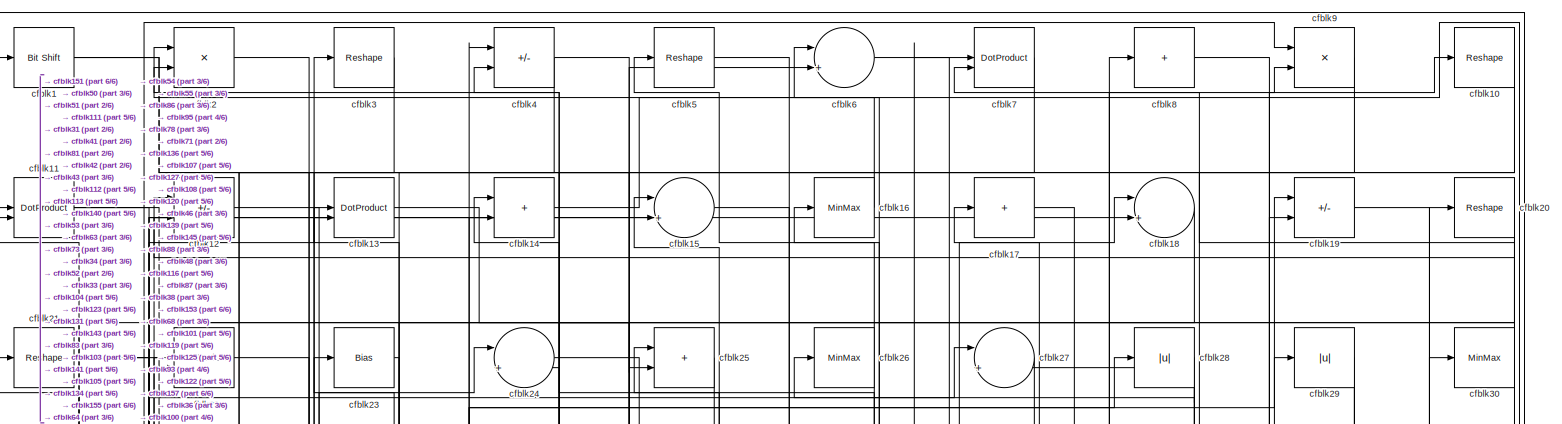
[diagram: root canvas - part 1/6, full width, top band]
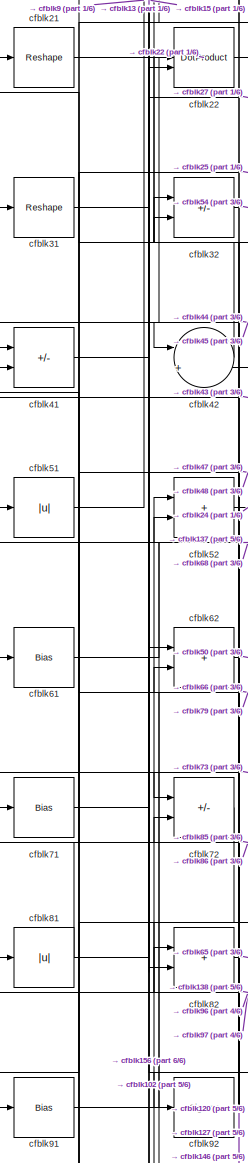
[diagram: root canvas - part 2/6, middle left region]
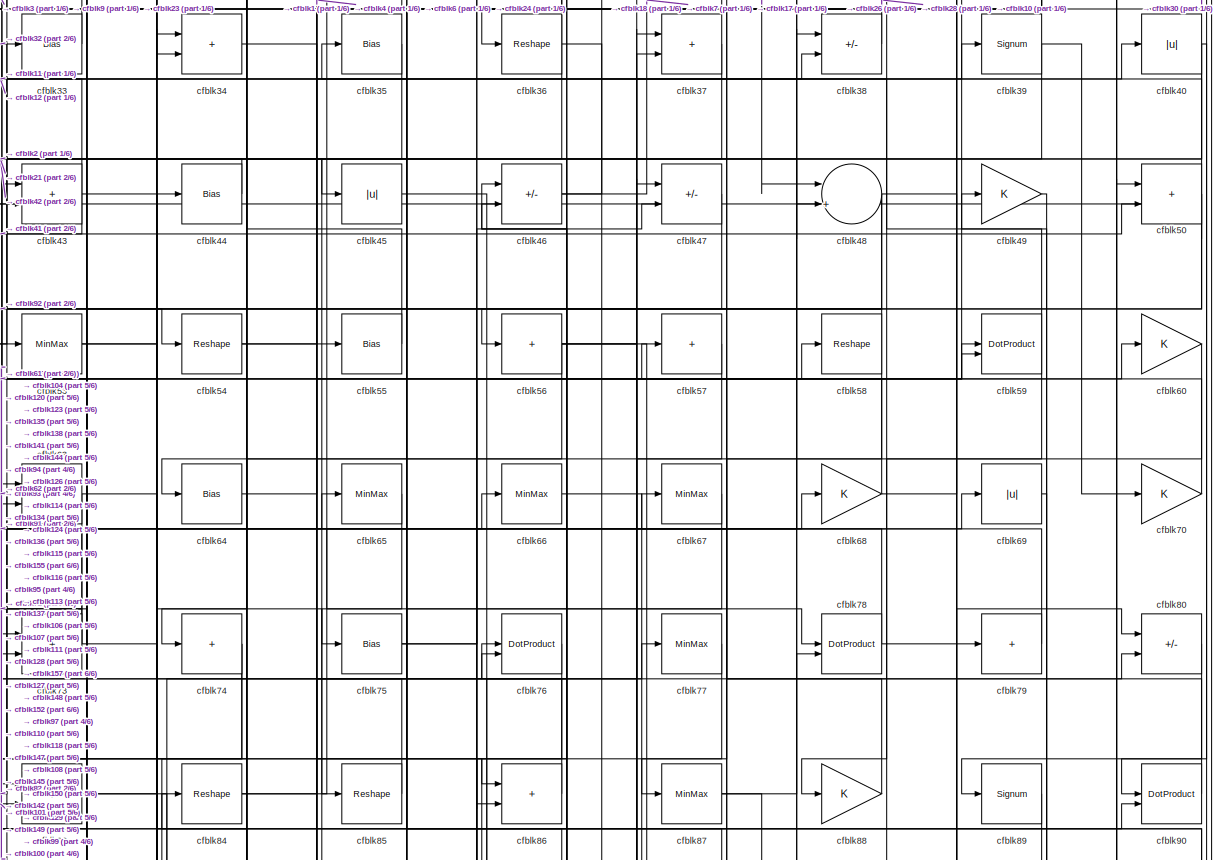
[diagram: root canvas - part 3/6, full width, middle band]
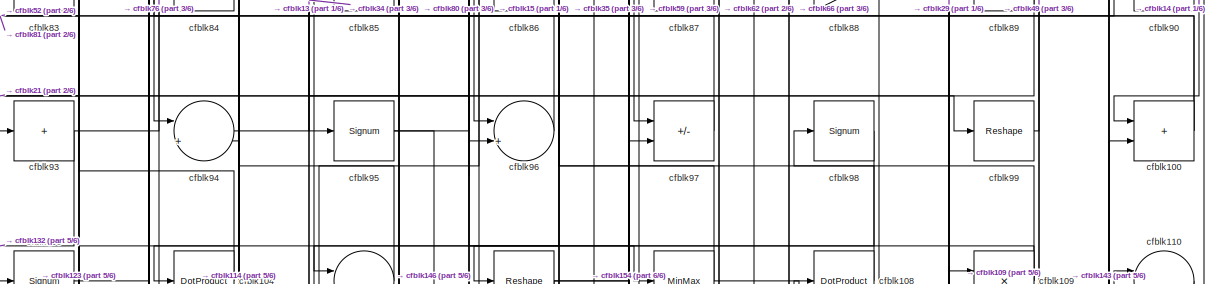
[diagram: root canvas - part 4/6, full width, middle band]
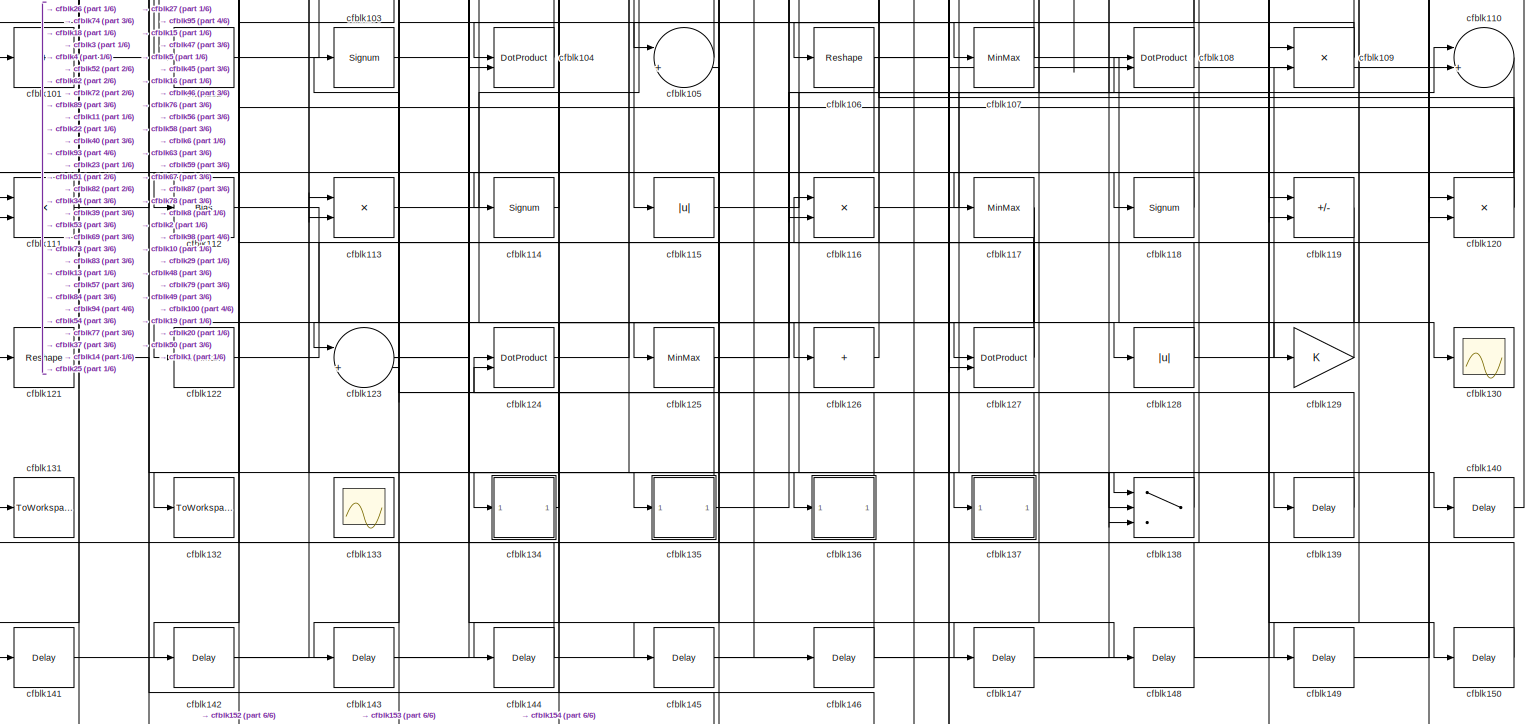
[diagram: root canvas - part 5/6, full width, bottom band]
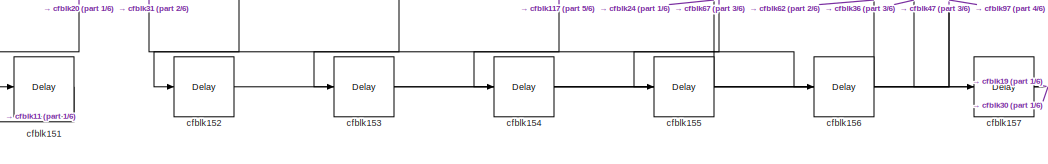
[diagram: root canvas - part 6/6, bottom center region]
MODEL slx_2cf994983c35
KIND model
CONFIG AbsTol = auto
CONFIG EnableMultiTasking = off
CONFIG FixedStep = auto
CONFIG MaxStep = auto
CONFIG MinStep = auto
CONFIG RelTol = 1e-3
CONFIG SampleTimeConstraint = Unconstrained
CONFIG SolverName = VariableStepAuto
CONFIG StartTime = 0.0
CONFIG StopTime = 10.0
BLOCK [Reference] cfblk1  REF=hdlsllib/Logic and Bit
Operations/Bit Shift
  SourceBlock = hdlsllib/Logic and Bit\nOperations/Bit Shift
  SourceType = Bit Shift
BLOCK [Reshape] cfblk10
BLOCK [Sum] cfblk100
  IconShape = rectangular
BLOCK [Sum] cfblk101
  IconShape = rectangular
  Inputs = +
BLOCK [Sum] cfblk102
  IconShape = rectangular
  Inputs = +
BLOCK [Signum] cfblk103
BLOCK [DotProduct] cfblk104
  OutDataTypeStr = Inherit: Inherit via internal rule
BLOCK [Sum] cfblk105
  Inputs = |++
BLOCK [Reshape] cfblk106
BLOCK [MinMax] cfblk107
BLOCK [DotProduct] cfblk108
  OutDataTypeStr = Inherit: Inherit via internal rule
BLOCK [Product] cfblk109
  Inputs = */
  RndMeth = Zero
  SaturateOnIntegerOverflow = on
BLOCK [DotProduct] cfblk11
  OutDataTypeStr = Inherit: Inherit via internal rule
BLOCK [Sum] cfblk110
  Inputs = |++
BLOCK [Product] cfblk111
  Inputs = */
  RndMeth = Zero
  SaturateOnIntegerOverflow = on
BLOCK [Bias] cfblk112
  Bias = 0.0
  SaturateOnIntegerOverflow = off
BLOCK [Product] cfblk113
  Inputs = */
  RndMeth = Zero
  SaturateOnIntegerOverflow = on
BLOCK [Signum] cfblk114
BLOCK [Abs] cfblk115
  SaturateOnIntegerOverflow = off
BLOCK [Product] cfblk116
  Inputs = */
  RndMeth = Zero
  SaturateOnIntegerOverflow = on
BLOCK [MinMax] cfblk117
BLOCK [Signum] cfblk118
BLOCK [Sum] cfblk119
  IconShape = rectangular
  Inputs = +-
BLOCK [Sum] cfblk12
  IconShape = rectangular
  Inputs = +-
BLOCK [Product] cfblk120
  Inputs = */
  RndMeth = Zero
  SaturateOnIntegerOverflow = on
BLOCK [Reshape] cfblk121
BLOCK [MinMax] cfblk122
BLOCK [Sum] cfblk123
  Inputs = |++
BLOCK [DotProduct] cfblk124
  OutDataTypeStr = Inherit: Inherit via internal rule
BLOCK [MinMax] cfblk125
BLOCK [Sum] cfblk126
  IconShape = rectangular
  Inputs = +
BLOCK [DotProduct] cfblk127
  OutDataTypeStr = Inherit: Inherit via internal rule
BLOCK [Abs] cfblk128
  SaturateOnIntegerOverflow = off
BLOCK [Gain] cfblk129
BLOCK [DotProduct] cfblk13
  OutDataTypeStr = Inherit: Inherit via internal rule
BLOCK [Scope] cfblk130
  Floating = off
  NumInputPorts = 1
  ScopeSpecificationString = Simulink.scopes.TimeScopeBlockCfg('CurrentConfiguration', extmgr.ConfigurationSet(extmgr.Configuration('Core','General UI',true),extmgr.Configuration('Core','Source UI',true),extmgr.Configuration('Sources','WiredSimulink',true,'DataLoggingVariableName','ScopeData2','DataLoggingSaveFormat','Array','DataLoggingLimitDataPoints',true,'DataLoggingDecimation','1'),extmgr.Configuration('Visuals','Time Do...<+868ch>
BLOCK [ToWorkspace] cfblk131
  MaxDataPoints = inf
  SampleTime = -1
  SaveFormat = Timeseries
  VariableName = simout
BLOCK [ToWorkspace] cfblk132
  MaxDataPoints = inf
  SampleTime = -1
  SaveFormat = Timeseries
  VariableName = simout
BLOCK [Scope] cfblk133
  Floating = on
  NumInputPorts = 1
  ScopeSpecificationString = Simulink.scopes.TimeScopeBlockCfg('CurrentConfiguration', extmgr.ConfigurationSet(extmgr.Configuration('Core','General UI',true,'FigureColor',[0.156862745098039 0.156862745098039 0.156862745098039]),extmgr.Configuration('Core','Source UI',true),extmgr.Configuration('Sources','WiredSimulink',true,'DataLoggingVariableName','ScopeData1','DataLoggingSaveFormat','StructureWithTime','DataLoggingLimitDat...<+2713ch>
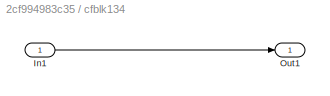
BLOCK [SubSystem] cfblk134
  LibrarySourceBlock = hdlsllib/Ports &\nSubsystems/Subsystem
BLOCK [Inport] cfblk134/In1
BLOCK [Outport] cfblk134/Out1
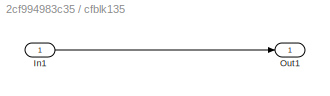
BLOCK [SubSystem] cfblk135
  LibrarySourceBlock = hdlsllib/Ports &\nSubsystems/Subsystem
BLOCK [Inport] cfblk135/In1
BLOCK [Outport] cfblk135/Out1
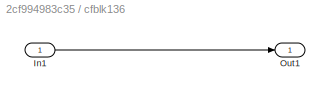
BLOCK [SubSystem] cfblk136
  LibrarySourceBlock = hdlsllib/Ports &\nSubsystems/Subsystem
BLOCK [Inport] cfblk136/In1
BLOCK [Outport] cfblk136/Out1
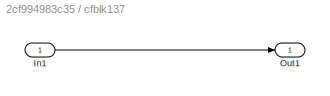
BLOCK [SubSystem] cfblk137
  LibrarySourceBlock = hdlsllib/Ports &\nSubsystems/Subsystem
BLOCK [Inport] cfblk137/In1
BLOCK [Outport] cfblk137/Out1
BLOCK [Switch] cfblk138
  InputSameDT = off
  SaturateOnIntegerOverflow = off
BLOCK [Delay] cfblk139
  InputPortMap = u0
  SampleTime = 1
BLOCK [Sum] cfblk14
  IconShape = rectangular
BLOCK [Delay] cfblk140
  InputPortMap = u0
  SampleTime = 1
BLOCK [Delay] cfblk141
  InputPortMap = u0
  SampleTime = 1
BLOCK [Delay] cfblk142
  InputPortMap = u0
  SampleTime = 1
BLOCK [Delay] cfblk143
  InputPortMap = u0
  SampleTime = 1
BLOCK [Delay] cfblk144
  InputPortMap = u0
  SampleTime = 1
BLOCK [Delay] cfblk145
  InputPortMap = u0
  SampleTime = 1
BLOCK [Delay] cfblk146
  InputPortMap = u0
  SampleTime = 1
BLOCK [Delay] cfblk147
  InputPortMap = u0
  SampleTime = 1
BLOCK [Delay] cfblk148
  InputPortMap = u0
  SampleTime = 1
BLOCK [Delay] cfblk149
  InputPortMap = u0
  SampleTime = 1
BLOCK [Sum] cfblk15
  Inputs = |++
BLOCK [Delay] cfblk150
  InputPortMap = u0
  SampleTime = 1
BLOCK [Delay] cfblk151
  InputPortMap = u0
  SampleTime = 1
BLOCK [Delay] cfblk152
  InputPortMap = u0
  SampleTime = 1
BLOCK [Delay] cfblk153
  InputPortMap = u0
  SampleTime = 1
BLOCK [Delay] cfblk154
  InputPortMap = u0
  SampleTime = 1
BLOCK [Delay] cfblk155
  InputPortMap = u0
  SampleTime = 1
BLOCK [Delay] cfblk156
  InputPortMap = u0
  SampleTime = 1
BLOCK [Delay] cfblk157
  InputPortMap = u0
  SampleTime = 1
BLOCK [MinMax] cfblk16
BLOCK [Sum] cfblk17
  IconShape = rectangular
  Inputs = +
BLOCK [Sum] cfblk18
  Inputs = |++
BLOCK [Sum] cfblk19
  IconShape = rectangular
  Inputs = +-
BLOCK [Product] cfblk2
  Inputs = */
  RndMeth = Zero
  SaturateOnIntegerOverflow = on
BLOCK [Reshape] cfblk20
BLOCK [Reshape] cfblk21
BLOCK [DotProduct] cfblk22
  OutDataTypeStr = Inherit: Inherit via internal rule
BLOCK [Bias] cfblk23
  Bias = 0.0
  SaturateOnIntegerOverflow = off
BLOCK [Sum] cfblk24
  Inputs = |++
BLOCK [Sum] cfblk25
  IconShape = rectangular
BLOCK [MinMax] cfblk26
BLOCK [Sum] cfblk27
  Inputs = |++
BLOCK [Abs] cfblk28
  SaturateOnIntegerOverflow = off
BLOCK [Abs] cfblk29
  SaturateOnIntegerOverflow = off
BLOCK [Reshape] cfblk3
BLOCK [MinMax] cfblk30
BLOCK [Reshape] cfblk31
BLOCK [Sum] cfblk32
  IconShape = rectangular
  Inputs = +-
BLOCK [Bias] cfblk33
  Bias = 0.0
  SaturateOnIntegerOverflow = off
BLOCK [Sum] cfblk34
  IconShape = rectangular
BLOCK [Bias] cfblk35
  Bias = 0.0
  SaturateOnIntegerOverflow = off
BLOCK [Reshape] cfblk36
BLOCK [Sum] cfblk37
  IconShape = rectangular
BLOCK [Sum] cfblk38
  IconShape = rectangular
  Inputs = +-
BLOCK [Signum] cfblk39
BLOCK [Sum] cfblk4
  IconShape = rectangular
  Inputs = +-
BLOCK [Abs] cfblk40
  SaturateOnIntegerOverflow = off
BLOCK [Sum] cfblk41
  IconShape = rectangular
  Inputs = +-
BLOCK [Sum] cfblk42
  Inputs = |++
BLOCK [Sum] cfblk43
  IconShape = rectangular
BLOCK [Bias] cfblk44
  Bias = 0.0
  SaturateOnIntegerOverflow = off
BLOCK [Abs] cfblk45
  SaturateOnIntegerOverflow = off
BLOCK [Sum] cfblk46
  IconShape = rectangular
  Inputs = +-
BLOCK [Sum] cfblk47
  IconShape = rectangular
  Inputs = +-
BLOCK [Sum] cfblk48
  Inputs = |++
BLOCK [Gain] cfblk49
BLOCK [Reshape] cfblk5
BLOCK [Sum] cfblk50
  IconShape = rectangular
BLOCK [Abs] cfblk51
  SaturateOnIntegerOverflow = off
BLOCK [Sum] cfblk52
  IconShape = rectangular
BLOCK [MinMax] cfblk53
BLOCK [Reshape] cfblk54
BLOCK [Bias] cfblk55
  Bias = 0.0
  SaturateOnIntegerOverflow = off
BLOCK [Sum] cfblk56
  IconShape = rectangular
  Inputs = +
BLOCK [Sum] cfblk57
  IconShape = rectangular
  Inputs = +
BLOCK [Reshape] cfblk58
BLOCK [DotProduct] cfblk59
  OutDataTypeStr = Inherit: Inherit via internal rule
BLOCK [Sum] cfblk6
  Inputs = |++
BLOCK [Gain] cfblk60
BLOCK [Bias] cfblk61
  Bias = 0.0
  SaturateOnIntegerOverflow = off
BLOCK [Sum] cfblk62
  IconShape = rectangular
BLOCK [Sum] cfblk63
  IconShape = rectangular
BLOCK [Bias] cfblk64
  Bias = 0.0
  SaturateOnIntegerOverflow = off
BLOCK [MinMax] cfblk65
BLOCK [MinMax] cfblk66
BLOCK [MinMax] cfblk67
BLOCK [Gain] cfblk68
BLOCK [Abs] cfblk69
  SaturateOnIntegerOverflow = off
BLOCK [DotProduct] cfblk7
  OutDataTypeStr = Inherit: Inherit via internal rule
BLOCK [Gain] cfblk70
BLOCK [Bias] cfblk71
  Bias = 0.0
  SaturateOnIntegerOverflow = off
BLOCK [Sum] cfblk72
  IconShape = rectangular
  Inputs = +-
BLOCK [Sum] cfblk73
  IconShape = rectangular
BLOCK [Sum] cfblk74
  IconShape = rectangular
  Inputs = +
BLOCK [Bias] cfblk75
  Bias = 0.0
  SaturateOnIntegerOverflow = off
BLOCK [DotProduct] cfblk76
  OutDataTypeStr = Inherit: Inherit via internal rule
BLOCK [MinMax] cfblk77
BLOCK [DotProduct] cfblk78
  OutDataTypeStr = Inherit: Inherit via internal rule
BLOCK [Sum] cfblk79
  IconShape = rectangular
  Inputs = +
BLOCK [Sum] cfblk8
  IconShape = rectangular
  Inputs = +
BLOCK [Sum] cfblk80
  IconShape = rectangular
  Inputs = +-
BLOCK [Abs] cfblk81
  SaturateOnIntegerOverflow = off
BLOCK [Sum] cfblk82
  IconShape = rectangular
BLOCK [Sum] cfblk83
  IconShape = rectangular
  Inputs = +-
BLOCK [Reshape] cfblk84
BLOCK [Reshape] cfblk85
BLOCK [Sum] cfblk86
  IconShape = rectangular
BLOCK [MinMax] cfblk87
BLOCK [Gain] cfblk88
BLOCK [Signum] cfblk89
BLOCK [Product] cfblk9
  Inputs = */
  RndMeth = Zero
  SaturateOnIntegerOverflow = on
BLOCK [DotProduct] cfblk90
  OutDataTypeStr = Inherit: Inherit via internal rule
BLOCK [Bias] cfblk91
  Bias = 0.0
  SaturateOnIntegerOverflow = off
BLOCK [Signum] cfblk92
BLOCK [Sum] cfblk93
  IconShape = rectangular
  Inputs = +
BLOCK [Sum] cfblk94
  Inputs = |++
BLOCK [Signum] cfblk95
BLOCK [Sum] cfblk96
  Inputs = |++
BLOCK [Sum] cfblk97
  IconShape = rectangular
  Inputs = +-
BLOCK [Signum] cfblk98
BLOCK [Reshape] cfblk99
NET cfblk100:1 -> cfblk15:1, cfblk35:1
LINE cfblk101:1 -> cfblk19:1
LINE cfblk102:1 -> cfblk40:1
LINE cfblk103:1 -> cfblk29:1
LINE cfblk104:1 -> cfblk13:1
LINE cfblk105:1 -> cfblk14:1
NET cfblk106:1 -> cfblk118:1, cfblk121:1, cfblk59:1
NET cfblk107:1 -> cfblk130:1, cfblk63:2
LINE cfblk108:1 -> cfblk2:1
NET cfblk109:1 -> cfblk105:1, cfblk98:1
NET cfblk10:1 -> cfblk131:1, cfblk83:1
LINE cfblk110:1 -> cfblk117:1
LINE cfblk111:1 -> cfblk18:2
LINE cfblk112:1 -> cfblk128:1
LINE cfblk113:1 -> cfblk37:2
LINE cfblk114:1 -> cfblk94:2
LINE cfblk115:1 -> cfblk79:1
LINE cfblk116:1 -> cfblk8:1
NET cfblk117:1 -> cfblk152:1, cfblk153:1, cfblk154:1
LINE cfblk118:1 -> cfblk67:1
LINE cfblk119:1 -> cfblk144:1
NET cfblk11:1 -> cfblk113:2, cfblk48:2
NET cfblk120:1 -> cfblk16:1, cfblk62:2
LINE cfblk121:1 -> cfblk138:2
LINE cfblk122:1 -> cfblk20:1
NET cfblk123:1 -> cfblk148:1, cfblk69:1
LINE cfblk124:1 -> cfblk77:1
NET cfblk125:1 -> cfblk108:1, cfblk110:1, cfblk124:1
LINE cfblk126:1 -> cfblk76:2
NET cfblk127:1 -> cfblk103:1, cfblk72:2
NET cfblk128:1 -> cfblk109:2, cfblk46:2
LINE cfblk129:1 -> cfblk116:1
LINE cfblk12:1 -> cfblk34:2
LINE cfblk134/In1:1 -> cfblk134/Out1:1
LINE cfblk134:1 -> cfblk84:1
LINE cfblk135/In1:1 -> cfblk135/Out1:1
NET cfblk135:1 -> cfblk124:2, cfblk47:2
LINE cfblk136/In1:1 -> cfblk136/Out1:1
LINE cfblk136:1 -> cfblk25:1
LINE cfblk137/In1:1 -> cfblk137/Out1:1
LINE cfblk137:1 -> cfblk51:1
LINE cfblk138:1 -> cfblk82:1
LINE cfblk139:1 -> cfblk4:1
LINE cfblk13:1 -> cfblk95:1
LINE cfblk140:1 -> cfblk1:1
LINE cfblk141:1 -> cfblk14:2
LINE cfblk142:1 -> cfblk113:1
LINE cfblk143:1 -> cfblk100:2
LINE cfblk144:1 -> cfblk34:1
LINE cfblk145:1 -> cfblk78:2
LINE cfblk146:1 -> cfblk52:2
LINE cfblk147:1 -> cfblk109:1
LINE cfblk148:1 -> cfblk37:1
LINE cfblk149:1 -> cfblk50:1
LINE cfblk14:1 -> cfblk100:1
LINE cfblk150:1 -> cfblk105:2
LINE cfblk151:1 -> cfblk11:1
LINE cfblk152:1 -> cfblk47:1
LINE cfblk153:1 -> cfblk19:2
LINE cfblk154:1 -> cfblk97:2
LINE cfblk155:1 -> cfblk24:2
LINE cfblk156:1 -> cfblk62:1
LINE cfblk157:1 -> cfblk30:1
LINE cfblk15:1 -> cfblk107:1
LINE cfblk16:1 -> cfblk6:1
LINE cfblk17:1 -> cfblk48:1
LINE cfblk18:1 -> cfblk143:1
LINE cfblk19:1 -> cfblk120:1
NET cfblk1:1 -> cfblk53:1, cfblk55:1
NET cfblk20:1 -> cfblk134:1, cfblk151:1
NET cfblk21:1 -> cfblk45:1, cfblk96:2
LINE cfblk22:1 -> cfblk140:1
LINE cfblk23:1 -> cfblk123:2
LINE cfblk24:1 -> cfblk78:1
LINE cfblk25:1 -> cfblk71:1
NET cfblk26:1 -> cfblk111:1, cfblk5:1
LINE cfblk27:1 -> cfblk145:1
NET cfblk28:1 -> cfblk27:2, cfblk43:2, cfblk87:1
NET cfblk29:1 -> cfblk119:2, cfblk125:1, cfblk93:1
LINE cfblk2:1 -> cfblk25:2
NET cfblk30:1 -> cfblk12:2, cfblk36:1, cfblk7:2
NET cfblk31:1 -> cfblk13:2, cfblk156:1
LINE cfblk32:1 -> cfblk54:1
LINE cfblk33:1 -> cfblk23:1
LINE cfblk34:1 -> cfblk99:1
LINE cfblk35:1 -> cfblk74:1
NET cfblk36:1 -> cfblk157:1, cfblk2:2, cfblk73:2
LINE cfblk37:1 -> cfblk115:1
LINE cfblk38:1 -> cfblk26:1
NET cfblk39:1 -> cfblk104:2, cfblk70:1
LINE cfblk3:1 -> cfblk122:1
NET cfblk40:1 -> cfblk106:1, cfblk111:2, cfblk90:1
LINE cfblk41:1 -> cfblk27:1
LINE cfblk42:1 -> cfblk22:1
NET cfblk43:1 -> cfblk12:1, cfblk41:2, cfblk75:1
LINE cfblk44:1 -> cfblk42:1
LINE cfblk45:1 -> cfblk137:1
NET cfblk46:1 -> cfblk18:1, cfblk7:1
LINE cfblk47:1 -> cfblk91:1
NET cfblk48:1 -> cfblk150:1, cfblk73:1, cfblk82:2
LINE cfblk49:1 -> cfblk129:1
NET cfblk4:1 -> cfblk112:1, cfblk86:2
NET cfblk50:1 -> cfblk11:2, cfblk42:2, cfblk86:1, cfblk92:1
LINE cfblk51:1 -> cfblk9:1
LINE cfblk52:1 -> cfblk24:1
NET cfblk53:1 -> cfblk120:2, cfblk28:1
NET cfblk54:1 -> cfblk136:1, cfblk6:2
LINE cfblk55:1 -> cfblk4:2
NET cfblk56:1 -> cfblk110:2, cfblk114:1, cfblk138:1, cfblk38:2
LINE cfblk57:1 -> cfblk104:1
NET cfblk58:1 -> cfblk127:2, cfblk56:1
NET cfblk59:1 -> cfblk147:1, cfblk33:1
LINE cfblk5:1 -> cfblk127:1
LINE cfblk60:1 -> cfblk88:1
LINE cfblk61:1 -> cfblk44:1
NET cfblk62:1 -> cfblk50:2, cfblk96:1
NET cfblk63:1 -> cfblk135:1, cfblk141:1
LINE cfblk64:1 -> cfblk39:1
LINE cfblk65:1 -> cfblk85:1
LINE cfblk66:1 -> cfblk97:1
LINE cfblk67:1 -> cfblk155:1
NET cfblk68:1 -> cfblk10:1, cfblk32:2
LINE cfblk69:1 -> cfblk149:1
LINE cfblk6:1 -> cfblk139:1
LINE cfblk70:1 -> cfblk43:1
LINE cfblk71:1 -> cfblk22:2
LINE cfblk72:1 -> cfblk102:1
NET cfblk73:1 -> cfblk138:3, cfblk3:1, cfblk72:1
NET cfblk74:1 -> cfblk101:1, cfblk83:2
NET cfblk75:1 -> cfblk60:1, cfblk68:1
LINE cfblk76:1 -> cfblk94:1
LINE cfblk77:1 -> cfblk116:2
NET cfblk78:1 -> cfblk46:1, cfblk80:1
LINE cfblk79:1 -> cfblk21:1
LINE cfblk7:1 -> cfblk64:1
LINE cfblk80:1 -> cfblk89:1
NET cfblk81:1 -> cfblk15:2, cfblk31:1
LINE cfblk82:1 -> cfblk65:1
NET cfblk83:1 -> cfblk126:1, cfblk90:2
NET cfblk84:1 -> cfblk38:1, cfblk58:1
LINE cfblk85:1 -> cfblk41:1
LINE cfblk86:1 -> cfblk61:1
NET cfblk87:1 -> cfblk108:2, cfblk9:2
LINE cfblk88:1 -> cfblk17:1
LINE cfblk89:1 -> cfblk142:1
LINE cfblk8:1 -> cfblk119:1
LINE cfblk90:1 -> cfblk57:1
LINE cfblk91:1 -> cfblk66:1
LINE cfblk92:1 -> cfblk32:1
NET cfblk93:1 -> cfblk132:1, cfblk76:1
LINE cfblk94:1 -> cfblk80:2
NET cfblk95:1 -> cfblk146:1, cfblk59:2
LINE cfblk96:1 -> cfblk81:1
LINE cfblk97:1 -> cfblk52:1
LINE cfblk98:1 -> cfblk123:1
LINE cfblk99:1 -> cfblk49:1
LINE cfblk9:1 -> cfblk63:1
note: NET lines group one-source signal fan-out (src -> all destinations, sorted); 1:1 wires keep LINE
